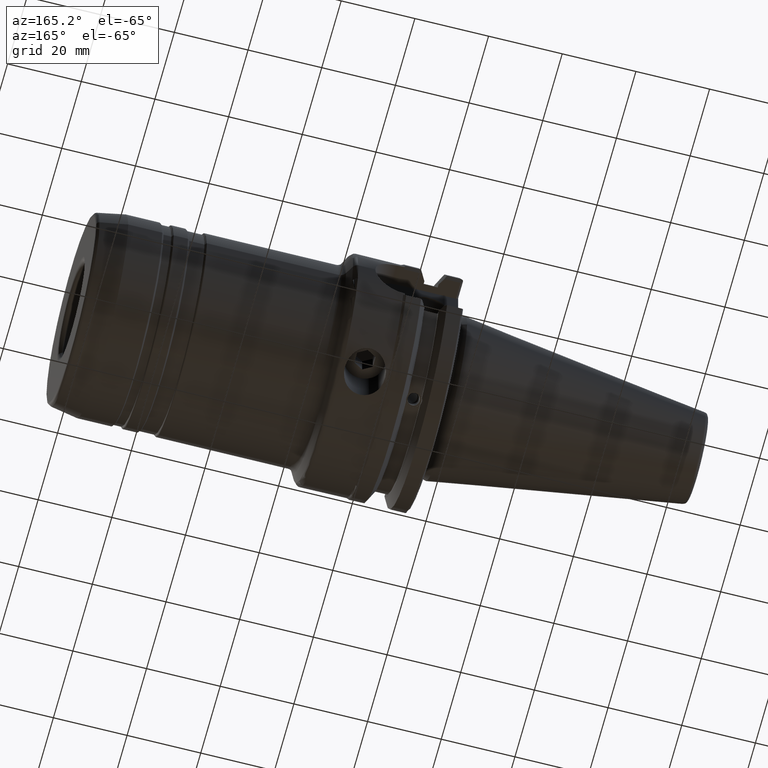
[diagram: clean part render]
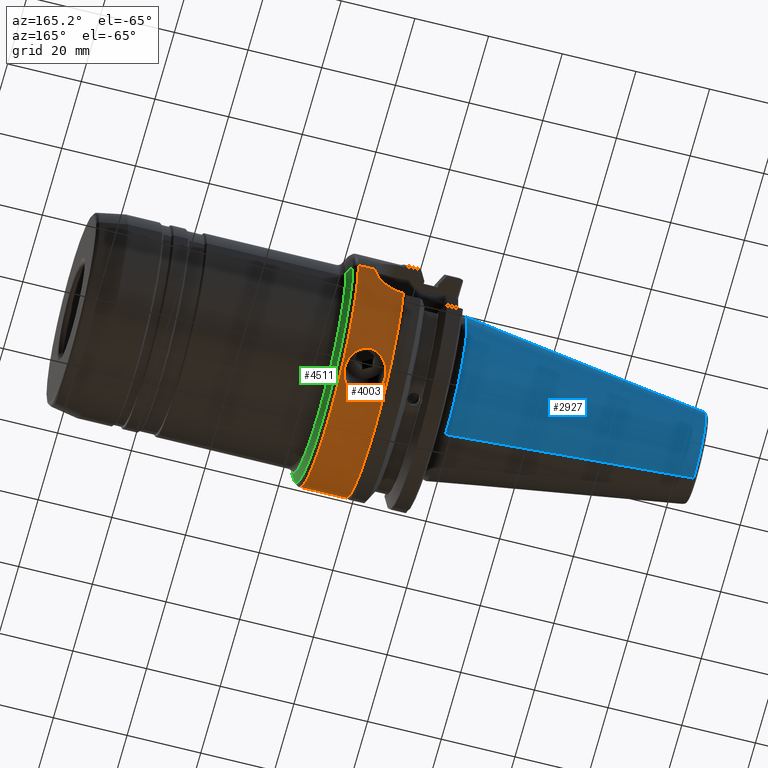
[diagram: same view with three faces highlighted in distinct colors, each labeled with its STEP entity id]
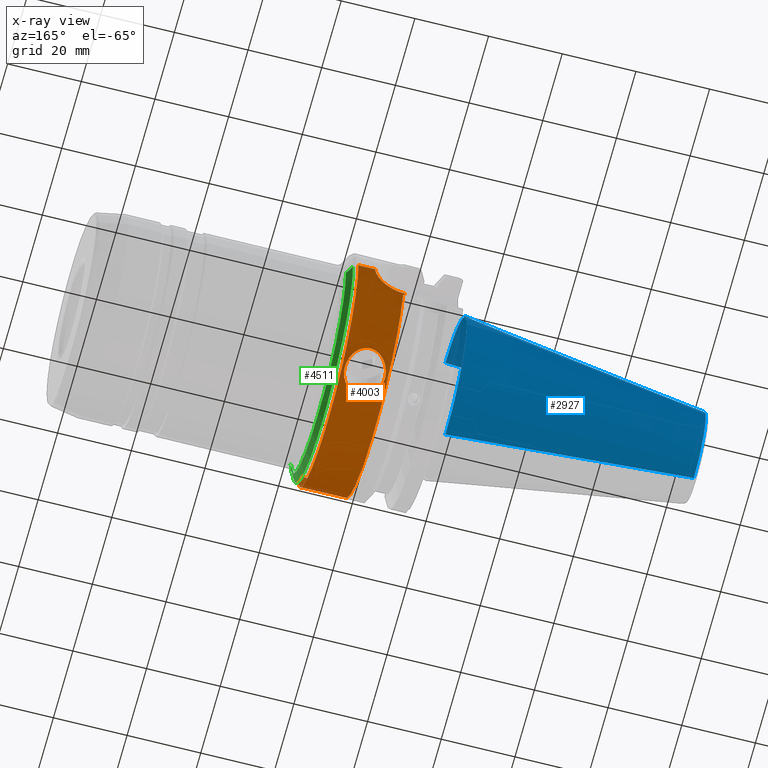
[diagram: x-ray of the same camera — body ghosted, the three highlighted faces saturated]
A machine part, auxiliary view with three faces highlighted in distinct colors.
The next image is the same camera in x-ray (body ghosted, the three faces saturated) — at least one of them is partly hidden behind the body in this view.
Their STEP definitions:

[orange] entity #4003 — the highlighted cylindrical surface (partial cylindrical patch) has radius 31.5 mm, axis along (1, 0, 0).
#797=DIRECTION('',(1.E0,-8.397047532784E-13,0.E0));
#798=VECTOR('',#797,4.582073519435E0);
#799=CARTESIAN_POINT('',(2.73425E1,3.15E1,-1.645570042486E-14));
#800=LINE('',#799,#798);
#845=CARTESIAN_POINT('',(1.905E1,0.E0,0.E0));
#846=DIRECTION('',(1.E0,0.E0,0.E0));
#847=DIRECTION('',(0.E0,9.598158325057E-1,-2.806306606046E-1));
#848=AXIS2_PLACEMENT_3D('',#845,#846,#847);
#867=CARTESIAN_POINT('',(1.905E1,0.E0,0.E0));
#868=DIRECTION('',(1.E0,0.E0,0.E0));
#869=DIRECTION('',(0.E0,-9.655872430081E-1,-2.600793650794E-1));
#870=AXIS2_PLACEMENT_3D('',#867,#868,#869);
#983=CARTESIAN_POINT('',(1.945401397852E1,0.E0,0.E0));
#984=DIRECTION('',(1.E0,0.E0,0.E0));
#985=DIRECTION('',(0.E0,-9.598158325093E-1,-2.806306605923E-1));
#986=AXIS2_PLACEMENT_3D('',#983,#984,#985);
#1005=DIRECTION('',(-1.E0,5.786378926213E-9,-1.953076340203E-8));
#1006=VECTOR('',#1005,4.040139785204E-1);
#1007=CARTESIAN_POINT('',(1.945401397852E1,-3.023419872404E1,
-8.839865808659E0));
#1008=LINE('',#1007,#1006);
#1009=DIRECTION('',(1.E0,0.E0,0.E0));
#1010=VECTOR('',#1009,1.E-1);
#1011=CARTESIAN_POINT('',(1.905E1,-3.041599815475E1,-8.191666666667E0));
#1012=LINE('',#1011,#1010);
#1013=CARTESIAN_POINT('',(2.73425E1,-3.15E1,1.531611232950E-14));
#1014=CARTESIAN_POINT('',(2.73425E1,-3.15E1,-5.200396906748E-1));
#1015=CARTESIAN_POINT('',(2.724892885559E1,-3.147537638245E1,
-1.554652275098E0));
#1016=CARTESIAN_POINT('',(2.676369767957E1,-3.135250089312E1,
-3.174246958476E0));
#1017=CARTESIAN_POINT('',(2.599518584623E1,-3.117271369791E1,
-4.593874255301E0));
#1018=CARTESIAN_POINT('',(2.497828854696E1,-3.096274375567E1,
-5.831248918158E0));
#1019=CARTESIAN_POINT('',(2.373846761148E1,-3.075070837589E1,
-6.849986588246E0));
#1020=CARTESIAN_POINT('',(2.231395147833E1,-3.056787697849E1,
-7.614909403548E0));
#1021=CARTESIAN_POINT('',(2.075507674328E1,-3.044463079849E1,
-8.087688707810E0));
#1022=CARTESIAN_POINT('',(1.969258530254E1,-3.041599815475E1,
-8.191666666667E0));
#1023=CARTESIAN_POINT('',(1.915E1,-3.041599815475E1,-8.191666666667E0));
#1025=DIRECTION('',(1.E0,8.397047532784E-13,0.E0));
#1026=VECTOR('',#1025,4.582073519435E0);
#1027=CARTESIAN_POINT('',(2.73425E1,-3.15E1,1.531611232950E-14));
#1028=LINE('',#1027,#1026);
#1029=CARTESIAN_POINT('',(3.192457351944E1,0.E0,0.E0));
#1030=DIRECTION('',(1.E0,0.E0,0.E0));
#1031=DIRECTION('',(0.E0,-1.E0,0.E0));
#1032=AXIS2_PLACEMENT_3D('',#1029,#1030,#1031);
#1034=CARTESIAN_POINT('',(1.915E1,3.041599815475E1,-8.191666666667E0));
#1035=CARTESIAN_POINT('',(1.969211322659E1,3.041599815475E1,-8.191666666667E0));
#1036=CARTESIAN_POINT('',(2.075370134712E1,3.044458879061E1,-8.087833516638E0));
#1037=CARTESIAN_POINT('',(2.231082195867E1,3.056756994280E1,-7.616123766895E0));
#1038=CARTESIAN_POINT('',(2.373475047374E1,3.075017005168E1,-6.852292398079E0));
#1039=CARTESIAN_POINT('',(2.497338833924E1,3.096181216969E1,-5.836132221195E0));
#1040=CARTESIAN_POINT('',(2.599317238038E1,3.117224210060E1,-4.597332173183E0));
#1041=CARTESIAN_POINT('',(2.676346671648E1,3.135244106753E1,-3.175179523794E0));
#1042=CARTESIAN_POINT('',(2.724904150487E1,3.147540540175E1,-1.554267292979E0));
#1043=CARTESIAN_POINT('',(2.73425E1,3.15E1,-5.197571565574E-1));
#1044=CARTESIAN_POINT('',(2.73425E1,3.15E1,-1.645570042486E-14));
#1046=DIRECTION('',(1.E0,0.E0,0.E0));
#1047=VECTOR('',#1046,9.999999999999E-2);
#1048=CARTESIAN_POINT('',(1.905E1,3.041599815475E1,-8.191666666667E0));
#1049=LINE('',#1048,#1047);
#1050=DIRECTION('',(-1.E0,2.335295534838E-8,7.830452152687E-8));
#1051=VECTOR('',#1050,4.040139785205E-1);
#1052=CARTESIAN_POINT('',(1.945401397852E1,3.023419872404E1,-8.839865808659E0));
#1053=LINE('',#1052,#1051);
#1054=CARTESIAN_POINT('',(3.118E1,1.45E1,-2.796426290822E1));
#1055=CARTESIAN_POINT('',(3.118E1,1.494749130251E1,-2.773223019176E1));
#1056=CARTESIAN_POINT('',(3.107331662510E1,1.577863519093E1,-2.727428375893E1));
#1057=CARTESIAN_POINT('',(3.068892634771E1,1.685736690920E1,-2.661825327422E1));
#1058=CARTESIAN_POINT('',(3.016031055737E1,1.773577844756E1,-2.603797415838E1));
#1059=CARTESIAN_POINT('',(2.957144637712E1,1.842452830556E1,-2.555402436445E1));
#1060=CARTESIAN_POINT('',(2.879420533243E1,1.907356329964E1,-2.507271141985E1));
#1061=CARTESIAN_POINT('',(2.784804100098E1,1.959689736054E1,-2.466401861628E1));
#1062=CARTESIAN_POINT('',(2.673659052811E1,1.993717586223E1,-2.438816939353E1));
#1063=CARTESIAN_POINT('',(2.566145829642E1,2.003260777720E1,-2.430921726738E1));
#1064=CARTESIAN_POINT('',(2.460327770039E1,1.993225829805E1,-2.439219454525E1));
#1065=CARTESIAN_POINT('',(2.349111568100E1,1.958899576624E1,-2.467037714850E1));
#1066=CARTESIAN_POINT('',(2.253348652658E1,1.905234943780E1,-2.508899712812E1));
#1067=CARTESIAN_POINT('',(2.175803770074E1,1.839399349154E1,-2.557608700561E1));
#1068=CARTESIAN_POINT('',(2.117796809899E1,1.770432943289E1,-2.605927202485E1));
#1069=CARTESIAN_POINT('',(2.066229779507E1,1.683643143818E1,-2.663130794390E1));
#1070=CARTESIAN_POINT('',(2.028468162259E1,1.576694305088E1,-2.728085475660E1));
#1071=CARTESIAN_POINT('',(2.018E1,1.494345587292E1,-2.773432263844E1));
#1072=CARTESIAN_POINT('',(2.018E1,1.45E1,-2.796426290822E1));
#1074=CARTESIAN_POINT('',(2.018E1,1.45E1,-2.796426290822E1));
#1075=CARTESIAN_POINT('',(2.018E1,1.403039862584E1,-2.820776011562E1));
#1076=CARTESIAN_POINT('',(2.029529675190E1,1.312305695348E1,-2.864901110167E1));
#1077=CARTESIAN_POINT('',(2.081350138347E1,1.181582912580E1,-2.920972192153E1));
#1078=CARTESIAN_POINT('',(2.160416134499E1,1.073107342113E1,-2.962152057505E1));
#1079=CARTESIAN_POINT('',(2.258804414246E1,9.891045761113E0,-2.990997284957E1));
#1080=CARTESIAN_POINT('',(2.374834227618E1,9.294022604157E0,-3.009888971004E1));
#1081=CARTESIAN_POINT('',(2.504036556921E1,8.985987286696E0,-3.019113683876E1));
#1082=CARTESIAN_POINT('',(2.632733842771E1,8.986542746488E0,-3.019098024508E1));
#1083=CARTESIAN_POINT('',(2.762330017454E1,9.298276586412E0,-3.009758627924E1));
#1084=CARTESIAN_POINT('',(2.878059991947E1,9.896842777346E0,-2.990808446470E1));
#1085=CARTESIAN_POINT('',(2.976454216060E1,1.074052941915E1,-2.961811460968E1));
#1086=CARTESIAN_POINT('',(3.054977140536E1,1.182300010117E1,-2.920674261764E1));
#1087=CARTESIAN_POINT('',(3.106481476678E1,1.312487966833E1,-2.864809889436E1));
#1088=CARTESIAN_POINT('',(3.118E1,1.403088366324E1,-2.820750861454E1));
#1089=CARTESIAN_POINT('',(3.118E1,1.45E1,-2.796426290822E1));
#2693=VERTEX_POINT('',#1034);
#2694=VERTEX_POINT('',#1044);
#2700=CARTESIAN_POINT('',(1.905E1,-3.041599815475E1,-8.191666666667E0));
#2701=CARTESIAN_POINT('',(1.915E1,-3.041599815475E1,-8.191666666667E0));
#2702=VERTEX_POINT('',#2700);
#2703=VERTEX_POINT('',#2701);
#2704=VERTEX_POINT('',#1013);
#2712=CARTESIAN_POINT('',(1.905E1,3.041599815475E1,-8.191666666667E0));
#2714=VERTEX_POINT('',#2712);
#2832=CARTESIAN_POINT('',(3.192457351944E1,-3.15E1,0.E0));
#2833=CARTESIAN_POINT('',(3.192457351944E1,3.15E1,0.E0));
#2834=VERTEX_POINT('',#2832);
#2835=VERTEX_POINT('',#2833);
#2844=CARTESIAN_POINT('',(1.945401397852E1,-3.023419872404E1,
-8.839865808659E0));
#2845=CARTESIAN_POINT('',(1.905E1,-3.023419872170E1,-8.839865816550E0));
#2846=VERTEX_POINT('',#2844);
#2847=VERTEX_POINT('',#2845);
#2848=CARTESIAN_POINT('',(1.945401397852E1,3.023419872404E1,-8.839865808659E0));
#2849=CARTESIAN_POINT('',(1.905E1,3.023419873348E1,-8.839865777023E0));
#2850=VERTEX_POINT('',#2848);
#2851=VERTEX_POINT('',#2849);
#2884=VERTEX_POINT('',#1054);
#2885=VERTEX_POINT('',#1072);
#3974=CARTESIAN_POINT('',(1.905E1,0.E0,0.E0));
#3975=DIRECTION('',(1.E0,0.E0,0.E0));
#3976=DIRECTION('',(0.E0,-1.E0,0.E0));
#3977=AXIS2_PLACEMENT_3D('',#3974,#3975,#3976);
#3978=CYLINDRICAL_SURFACE('',#3977,3.15E1);
#3979=ORIENTED_EDGE('',*,*,#3965,.F.);
#3981=ORIENTED_EDGE('',*,*,#3980,.T.);
#3982=ORIENTED_EDGE('',*,*,#3791,.F.);
#3983=ORIENTED_EDGE('',*,*,#3582,.T.);
#3985=ORIENTED_EDGE('',*,*,#3984,.F.);
#3986=ORIENTED_EDGE('',*,*,#3716,.T.);
#3988=ORIENTED_EDGE('',*,*,#3987,.T.);
#3989=ORIENTED_EDGE('',*,*,#3712,.F.);
#3991=ORIENTED_EDGE('',*,*,#3990,.F.);
#3992=ORIENTED_EDGE('',*,*,#3906,.F.);
#3993=ORIENTED_EDGE('',*,*,#3765,.F.);
#3994=ORIENTED_EDGE('',*,*,#3934,.F.);
#3995=EDGE_LOOP('',(#3979,#3981,#3982,#3983,#3985,#3986,#3988,#3989,#3991,#3992,
#3993,#3994));
#3996=FACE_OUTER_BOUND('',#3995,.F.);
#3998=ORIENTED_EDGE('',*,*,#3997,.F.);
#4000=ORIENTED_EDGE('',*,*,#3999,.F.);
#4001=EDGE_LOOP('',(#3998,#4000));
#4002=FACE_BOUND('',#4001,.F.);
#4003=ADVANCED_FACE('',(#3996,#4002),#3978,.T.);
#849=CIRCLE('',#848,3.15E1);
#871=CIRCLE('',#870,3.15E1);
#987=CIRCLE('',#986,3.15E1);
#1024=B_SPLINE_CURVE_WITH_KNOTS('',3,(#1013,#1014,#1015,#1016,#1017,#1018,#1019,
#1020,#1021,#1022,#1023),.UNSPECIFIED.,.F.,.F.,(4,1,1,1,1,1,1,1,4),(0.E0,
1.25E-1,2.5E-1,3.75E-1,5.E-1,6.25E-1,7.5E-1,8.75E-1,1.E0),.UNSPECIFIED.);
#1033=CIRCLE('',#1032,3.15E1);
#1045=B_SPLINE_CURVE_WITH_KNOTS('',3,(#1034,#1035,#1036,#1037,#1038,#1039,#1040,
#1041,#1042,#1043,#1044),.UNSPECIFIED.,.F.,.F.,(4,1,1,1,1,1,1,1,4),(0.E0,
1.25E-1,2.5E-1,3.75E-1,5.E-1,6.25E-1,7.5E-1,8.75E-1,1.E0),.UNSPECIFIED.);
#1073=B_SPLINE_CURVE_WITH_KNOTS('',3,(#1054,#1055,#1056,#1057,#1058,#1059,#1060,
#1061,#1062,#1063,#1064,#1065,#1066,#1067,#1068,#1069,#1070,#1071,#1072),
.UNSPECIFIED.,.F.,.F.,(4,1,1,1,1,1,1,1,1,1,1,1,1,1,1,1,4),(0.E0,6.25E-2,1.25E-1,
1.875E-1,2.5E-1,3.125E-1,3.75E-1,4.375E-1,5.E-1,5.625E-1,6.25E-1,6.875E-1,
7.5E-1,8.125E-1,8.75E-1,9.375E-1,1.E0),.UNSPECIFIED.);
#1090=B_SPLINE_CURVE_WITH_KNOTS('',3,(#1074,#1075,#1076,#1077,#1078,#1079,#1080,
#1081,#1082,#1083,#1084,#1085,#1086,#1087,#1088,#1089),.UNSPECIFIED.,.F.,.F.,(4,
1,1,1,1,1,1,1,1,1,1,1,1,4),(0.E0,7.692307692308E-2,1.538461538462E-1,
2.307692307692E-1,3.076923076923E-1,3.846153846154E-1,4.615384615385E-1,
5.384615384615E-1,6.153846153846E-1,6.923076923077E-1,7.692307692308E-1,
8.461538461538E-1,9.230769230769E-1,1.E0),.UNSPECIFIED.);
#3582=EDGE_CURVE('',#2702,#2703,#1012,.T.);
#3712=EDGE_CURVE('',#2694,#2835,#800,.T.);
#3716=EDGE_CURVE('',#2704,#2834,#1028,.T.);
#3765=EDGE_CURVE('',#2851,#2714,#849,.T.);
#3791=EDGE_CURVE('',#2702,#2847,#871,.T.);
#3906=EDGE_CURVE('',#2714,#2693,#1049,.T.);
#3934=EDGE_CURVE('',#2850,#2851,#1053,.T.);
#3965=EDGE_CURVE('',#2846,#2850,#987,.T.);
#3980=EDGE_CURVE('',#2846,#2847,#1008,.T.);
#3984=EDGE_CURVE('',#2704,#2703,#1024,.T.);
#3987=EDGE_CURVE('',#2834,#2835,#1033,.T.);
#3990=EDGE_CURVE('',#2693,#2694,#1045,.T.);
#3997=EDGE_CURVE('',#2884,#2885,#1073,.T.);
#3999=EDGE_CURVE('',#2885,#2884,#1090,.T.);

[blue] entity #2927 — the highlighted conical surface has half-angle 8.297 deg.
#2=CARTESIAN_POINT('',(-6.739430689359E1,0.E0,0.E0));
#3=DIRECTION('',(-1.E0,0.E0,0.E0));
#4=DIRECTION('',(0.E0,0.E0,1.E0));
#5=AXIS2_PLACEMENT_3D('',#2,#3,#4);
#7=CARTESIAN_POINT('',(-2.842170943040E-14,0.E0,0.E0));
#8=DIRECTION('',(1.E0,0.E0,0.E0));
#9=DIRECTION('',(0.E0,0.E0,-1.E0));
#10=AXIS2_PLACEMENT_3D('',#7,#8,#9);
#12=CARTESIAN_POINT('',(2.273736754432E-13,0.E0,0.E0));
#13=DIRECTION('',(1.E0,0.E0,0.E0));
#14=DIRECTION('',(0.E0,1.E0,0.E0));
#15=AXIS2_PLACEMENT_3D('',#12,#13,#14);
#52=DIRECTION('',(-9.895329809873E-1,-1.311204003070E-12,-1.443068935927E-1));
#53=VECTOR('',#52,6.810718610546E1);
#54=CARTESIAN_POINT('',(0.E0,0.E0,2.2225E1));
#55=LINE('',#54,#53);
#66=DIRECTION('',(-9.895329809873E-1,1.311191833568E-12,1.443068935927E-1));
#67=VECTOR('',#66,6.810718610546E1);
#68=CARTESIAN_POINT('',(0.E0,0.E0,-2.2225E1));
#69=LINE('',#68,#67);
#2499=CARTESIAN_POINT('',(-6.739430689359E1,0.E0,-1.239666354178E1));
#2500=CARTESIAN_POINT('',(-6.739430689359E1,0.E0,1.239666354178E1));
#2501=VERTEX_POINT('',#2499);
#2502=VERTEX_POINT('',#2500);
#2517=CARTESIAN_POINT('',(0.E0,2.2225E1,1.633944770218E-8));
#2518=VERTEX_POINT('',#2517);
#2519=CARTESIAN_POINT('',(1.989519660128E-13,0.E0,2.2225E1));
#2520=VERTEX_POINT('',#2519);
#2521=CARTESIAN_POINT('',(-2.842170943040E-14,0.E0,-2.2225E1));
#2522=VERTEX_POINT('',#2521);
#2910=CARTESIAN_POINT('',(-3.369715344680E1,0.E0,0.E0));
#2911=DIRECTION('',(1.E0,0.E0,0.E0));
#2912=DIRECTION('',(0.E0,0.E0,1.E0));
#2913=AXIS2_PLACEMENT_3D('',#2910,#2911,#2912);
#2914=CONICAL_SURFACE('',#2913,1.731083177089E1,8.297145E0);
#2916=ORIENTED_EDGE('',*,*,#2915,.T.);
#2918=ORIENTED_EDGE('',*,*,#2917,.F.);
#2920=ORIENTED_EDGE('',*,*,#2919,.T.);
#2922=ORIENTED_EDGE('',*,*,#2921,.T.);
#2924=ORIENTED_EDGE('',*,*,#2923,.T.);
#2925=EDGE_LOOP('',(#2916,#2918,#2920,#2922,#2924));
#2926=FACE_OUTER_BOUND('',#2925,.F.);
#2927=ADVANCED_FACE('',(#2926),#2914,.T.);
#6=CIRCLE('',#5,1.239666354178E1);
#11=CIRCLE('',#10,2.2225E1);
#16=CIRCLE('',#15,2.2225E1);
#2915=EDGE_CURVE('',#2502,#2501,#6,.T.);
#2917=EDGE_CURVE('',#2522,#2501,#69,.T.);
#2919=EDGE_CURVE('',#2522,#2518,#11,.T.);
#2921=EDGE_CURVE('',#2518,#2520,#16,.T.);
#2923=EDGE_CURVE('',#2520,#2502,#55,.T.);

[green] entity #4511 — the highlighted conical surface has half-angle 60 deg.
#1461=DIRECTION('',(5.E-1,-8.660254037844E-1,0.E0));
#1462=VECTOR('',#1461,2.598076211344E0);
#1463=CARTESIAN_POINT('',(3.322361162511E1,3.074999999999E1,0.E0));
#1464=LINE('',#1463,#1462);
#1465=CARTESIAN_POINT('',(3.322361162511E1,0.E0,0.E0));
#1466=DIRECTION('',(-1.E0,0.E0,0.E0));
#1467=DIRECTION('',(0.E0,1.E0,0.E0));
#1468=AXIS2_PLACEMENT_3D('',#1465,#1466,#1467);
#1470=DIRECTION('',(5.E-1,8.660254037844E-1,0.E0));
#1471=VECTOR('',#1470,2.598076211344E0);
#1472=CARTESIAN_POINT('',(3.322361162511E1,-3.074999999999E1,0.E0));
#1473=LINE('',#1472,#1471);
#1479=CARTESIAN_POINT('',(3.452264973078E1,0.E0,0.E0));
#1480=DIRECTION('',(-1.E0,0.E0,0.E0));
#1481=DIRECTION('',(0.E0,1.E0,0.E0));
#1482=AXIS2_PLACEMENT_3D('',#1479,#1480,#1481);
#2752=CARTESIAN_POINT('',(3.322361162511E1,3.074999999999E1,0.E0));
#2753=CARTESIAN_POINT('',(3.452264973078E1,2.85E1,0.E0));
#2754=VERTEX_POINT('',#2752);
#2755=VERTEX_POINT('',#2753);
#2792=CARTESIAN_POINT('',(3.322361162511E1,-3.074999999999E1,0.E0));
#2793=CARTESIAN_POINT('',(3.452264973078E1,-2.85E1,0.E0));
#2794=VERTEX_POINT('',#2792);
#2795=VERTEX_POINT('',#2793);
#4499=CARTESIAN_POINT('',(3.387313067795E1,0.E0,0.E0));
#4500=DIRECTION('',(-1.E0,0.E0,0.E0));
#4501=DIRECTION('',(0.E0,1.E0,0.E0));
#4502=AXIS2_PLACEMENT_3D('',#4499,#4500,#4501);
#4503=CONICAL_SURFACE('',#4502,2.9625E1,6.E1);
#4504=ORIENTED_EDGE('',*,*,#4489,.F.);
#4505=ORIENTED_EDGE('',*,*,#4464,.T.);
#4506=ORIENTED_EDGE('',*,*,#4493,.T.);
#4508=ORIENTED_EDGE('',*,*,#4507,.F.);
#4509=EDGE_LOOP('',(#4504,#4505,#4506,#4508));
#4510=FACE_OUTER_BOUND('',#4509,.F.);
#4511=ADVANCED_FACE('',(#4510),#4503,.T.);
#1469=CIRCLE('',#1468,3.074999999999E1);
#1483=CIRCLE('',#1482,2.85E1);
#4464=EDGE_CURVE('',#2754,#2794,#1469,.T.);
#4489=EDGE_CURVE('',#2754,#2755,#1464,.T.);
#4493=EDGE_CURVE('',#2794,#2795,#1473,.T.);
#4507=EDGE_CURVE('',#2755,#2795,#1483,.T.);